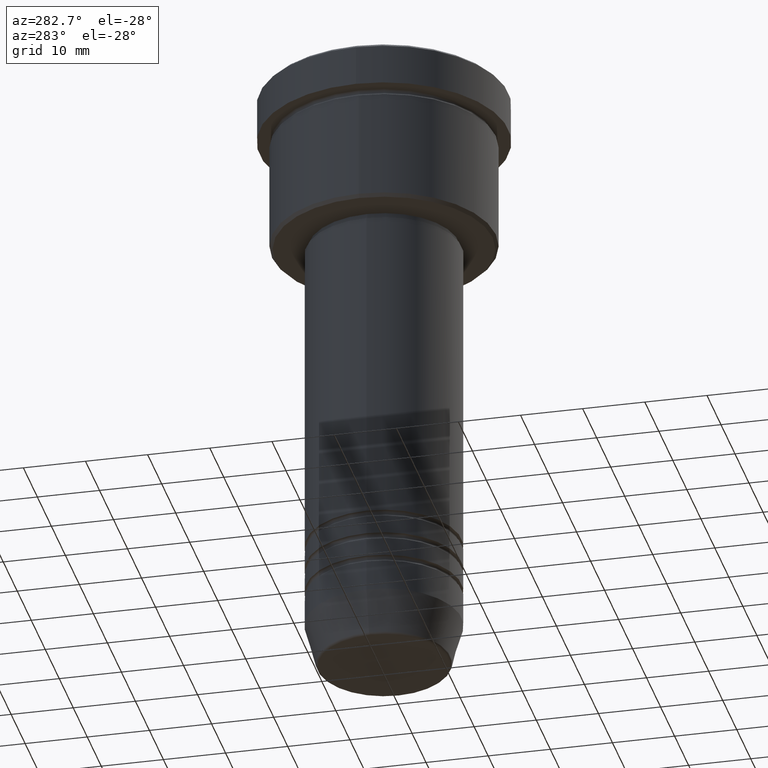
[diagram: clean part render]
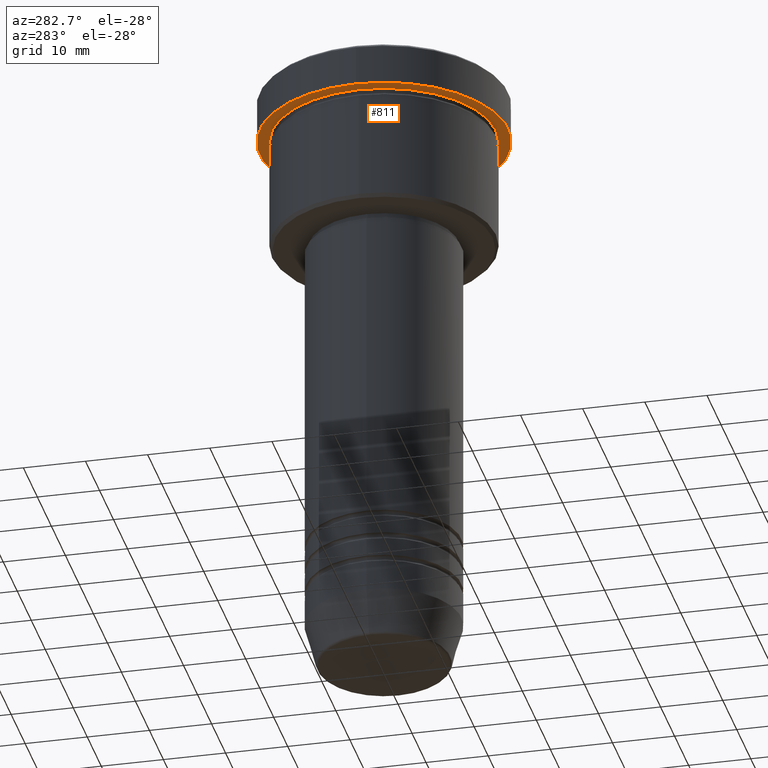
[diagram: same view with one face highlighted and labeled with its STEP entity id]
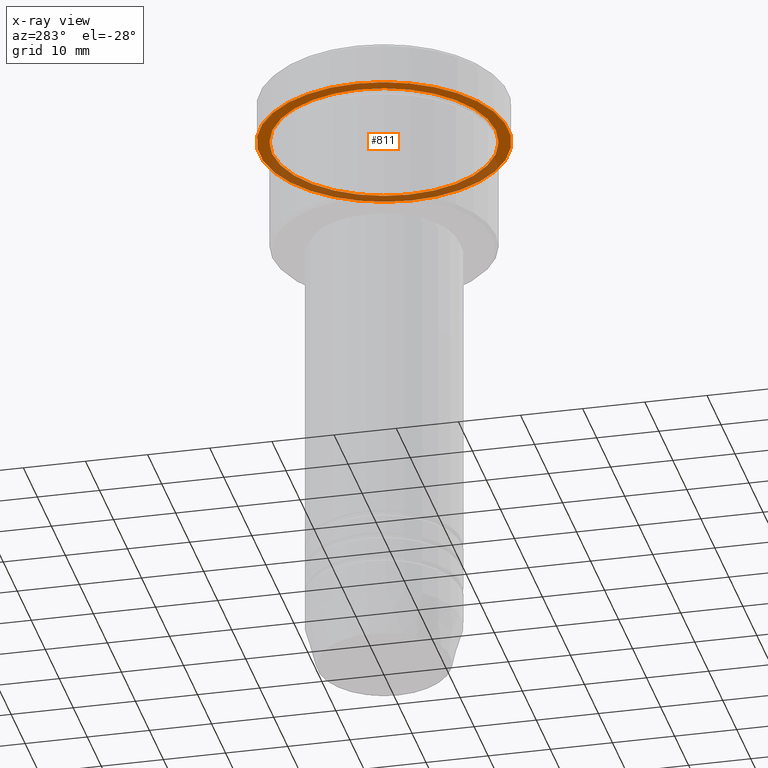
[diagram: x-ray of the same camera — body ghosted, the highlighted face saturated]
A machine part, auxiliary view. The second image highlights one B-rep face of the part: STEP entity #811.
The next image is the same camera in x-ray: the body ghosted, the highlighted face saturated — about 38% of this face is hidden behind the body in this view.
In plain terms, the highlighted planar face has unit normal (0, 0, -1).
Its self-contained STEP definition (entity closure, byte-faithful):
#44 = FACE_BOUND ( 'NONE', #878, .T. ) ;
#109 = EDGE_CURVE ( 'NONE', #278, #1154, #640, .T. ) ;
#231 = DIRECTION ( 'NONE',  ( -0.000000000000000000, -0.000000000000000000, 1.000000000000000000 ) ) ;
#278 = VERTEX_POINT ( 'NONE', #719 ) ;
#342 = DIRECTION ( 'NONE',  ( -1.000000000000000000, 0.000000000000000000, -0.000000000000000000 ) ) ;
#346 = CIRCLE ( 'NONE', #401, 18.00000000000000000 ) ;
#372 = CARTESIAN_POINT ( 'NONE',  ( -20.00000000000000000, 2.449293598294706513E-15, -6.999999999999995559 ) ) ;
#401 = AXIS2_PLACEMENT_3D ( 'NONE', #525, #1143, #428 ) ;
#422 = EDGE_CURVE ( 'NONE', #1154, #278, #712, .T. ) ;
#427 = CARTESIAN_POINT ( 'NONE',  ( 0.000000000000000000, 20.00000000000000000, -6.999999999999995559 ) ) ;
#428 = DIRECTION ( 'NONE',  ( -1.000000000000000000, 0.000000000000000000, 0.000000000000000000 ) ) ;
#447 = DIRECTION ( 'NONE',  ( -1.000000000000000000, 0.000000000000000000, 0.000000000000000000 ) ) ;
#455 = EDGE_CURVE ( 'NONE', #845, #717, #1148, .T. ) ;
#473 = DIRECTION ( 'NONE',  ( 1.000000000000000000, 0.000000000000000000, 0.000000000000000000 ) ) ;
#525 = CARTESIAN_POINT ( 'NONE',  ( 0.000000000000000000, 0.000000000000000000, -6.999999999999995559 ) ) ;
#552 = AXIS2_PLACEMENT_3D ( 'NONE', #427, #881, #342 ) ;
#613 = ORIENTED_EDGE ( 'NONE', *, *, #109, .F. ) ;
#622 = AXIS2_PLACEMENT_3D ( 'NONE', #1037, #954, #752 ) ;
#640 = CIRCLE ( 'NONE', #622, 20.00000000000000000 ) ;
#646 = ORIENTED_EDGE ( 'NONE', *, *, #949, .T. ) ;
#683 = PLANE ( 'NONE',  #552 ) ;
#689 = FACE_OUTER_BOUND ( 'NONE', #783, .T. ) ;
#712 = CIRCLE ( 'NONE', #1133, 20.00000000000000000 ) ;
#717 = VERTEX_POINT ( 'NONE', #771 ) ;
#719 = CARTESIAN_POINT ( 'NONE',  ( 20.00000000000000000, 0.000000000000000000, -6.999999999999995559 ) ) ;
#734 = AXIS2_PLACEMENT_3D ( 'NONE', #828, #1012, #447 ) ;
#752 = DIRECTION ( 'NONE',  ( 1.000000000000000000, 0.000000000000000000, 0.000000000000000000 ) ) ;
#771 = CARTESIAN_POINT ( 'NONE',  ( -18.00000000000000000, 0.000000000000000000, -6.999999999999995559 ) ) ;
#783 = EDGE_LOOP ( 'NONE', ( #613, #826 ) ) ;
#807 = ORIENTED_EDGE ( 'NONE', *, *, #455, .T. ) ;
#811 = ADVANCED_FACE ( 'NONE', ( #44, #689 ), #683, .T. ) ;
#826 = ORIENTED_EDGE ( 'NONE', *, *, #422, .F. ) ;
#828 = CARTESIAN_POINT ( 'NONE',  ( 0.000000000000000000, 0.000000000000000000, -6.999999999999995559 ) ) ;
#845 = VERTEX_POINT ( 'NONE', #991 ) ;
#878 = EDGE_LOOP ( 'NONE', ( #646, #807 ) ) ;
#881 = DIRECTION ( 'NONE',  ( 0.000000000000000000, 0.000000000000000000, -1.000000000000000000 ) ) ;
#949 = EDGE_CURVE ( 'NONE', #717, #845, #346, .T. ) ;
#954 = DIRECTION ( 'NONE',  ( -0.000000000000000000, -0.000000000000000000, 1.000000000000000000 ) ) ;
#991 = CARTESIAN_POINT ( 'NONE',  ( 18.00000000000000000, 2.204364238465235428E-15, -6.999999999999995559 ) ) ;
#1012 = DIRECTION ( 'NONE',  ( -0.000000000000000000, -0.000000000000000000, 1.000000000000000000 ) ) ;
#1032 = CARTESIAN_POINT ( 'NONE',  ( 0.000000000000000000, 0.000000000000000000, -6.999999999999995559 ) ) ;
#1037 = CARTESIAN_POINT ( 'NONE',  ( 0.000000000000000000, 0.000000000000000000, -6.999999999999995559 ) ) ;
#1133 = AXIS2_PLACEMENT_3D ( 'NONE', #1032, #231, #473 ) ;
#1143 = DIRECTION ( 'NONE',  ( -0.000000000000000000, -0.000000000000000000, 1.000000000000000000 ) ) ;
#1148 = CIRCLE ( 'NONE', #734, 18.00000000000000000 ) ;
#1154 = VERTEX_POINT ( 'NONE', #372 ) ;